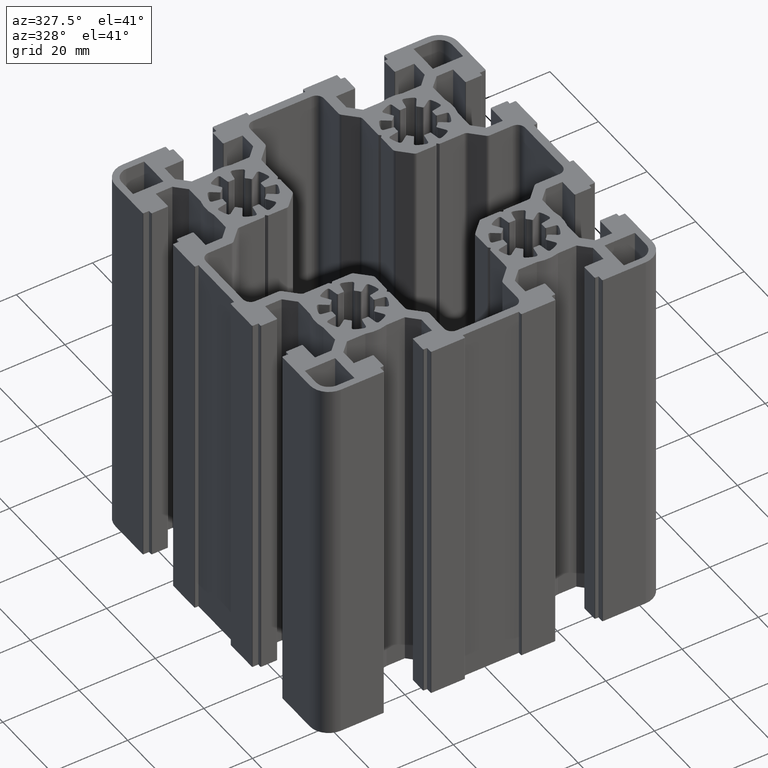
[diagram: clean part render]
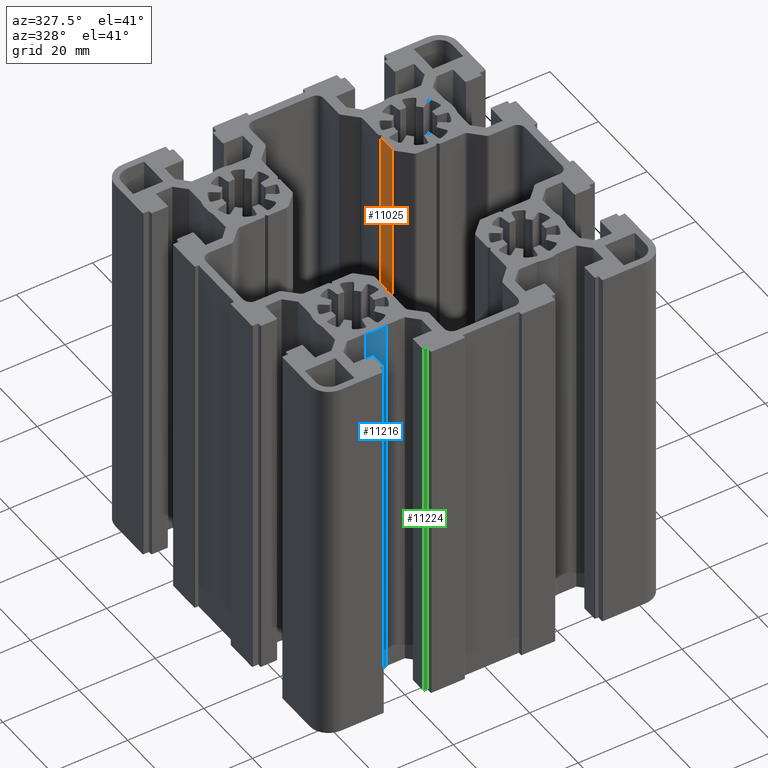
[diagram: same view with three faces highlighted in distinct colors, each labeled with its STEP entity id]
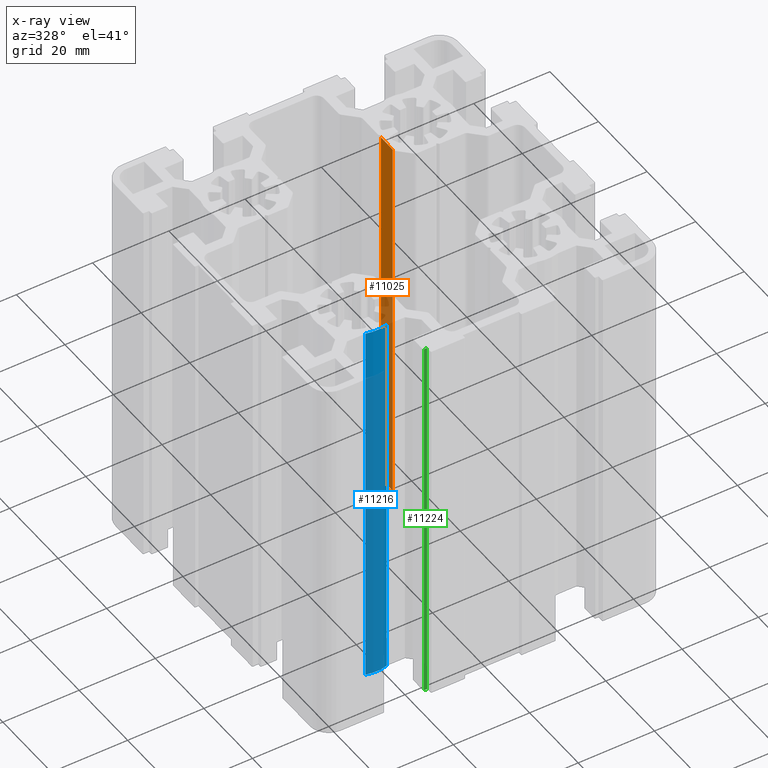
[diagram: x-ray of the same camera — body ghosted, the three highlighted faces saturated]
A machine part, auxiliary view with three faces highlighted in distinct colors.
The next image is the same camera in x-ray (body ghosted, the three faces saturated) — at least one of them is partly hidden behind the body in this view.
Their STEP definitions:

[orange] entity #11025 — the highlighted planar face has unit normal (1, 0, 0).
#84=PLANE('',#11739);
#431=FACE_OUTER_BOUND('',#1005,.T.);
#1005=EDGE_LOOP('',(#7657,#7658,#7659,#7660));
#1699=LINE('',#16828,#2823);
#1700=LINE('',#16831,#2824);
#1701=LINE('',#16833,#2825);
#1702=LINE('',#16834,#2826);
#2823=VECTOR('',#13387,100.);
#2824=VECTOR('',#13390,4.87517000000003);
#2825=VECTOR('',#13391,4.87517000000003);
#2826=VECTOR('',#13392,100.);
#4557=VERTEX_POINT('',#16824);
#4558=VERTEX_POINT('',#16826);
#4559=VERTEX_POINT('',#16830);
#4560=VERTEX_POINT('',#16832);
#5821=EDGE_CURVE('',#4558,#4557,#1699,.T.);
#5822=EDGE_CURVE('',#4557,#4559,#1700,.T.);
#5823=EDGE_CURVE('',#4560,#4558,#1701,.T.);
#5824=EDGE_CURVE('',#4560,#4559,#1702,.T.);
#7657=ORIENTED_EDGE('',*,*,#5822,.F.);
#7658=ORIENTED_EDGE('',*,*,#5821,.F.);
#7659=ORIENTED_EDGE('',*,*,#5823,.F.);
#7660=ORIENTED_EDGE('',*,*,#5824,.T.);
#11025=ADVANCED_FACE('',(#431),#84,.F.);
#11739=AXIS2_PLACEMENT_3D('',#16829,#13388,#13389);
#13387=DIRECTION('',(0.,0.,1.));
#13388=DIRECTION('center_axis',(1.,2.45838516864209E-8,0.));
#13389=DIRECTION('ref_axis',(-2.45838517543007E-8,1.,0.));
#13390=DIRECTION('',(2.45838516864209E-8,-1.,0.));
#13391=DIRECTION('',(-2.45838516864209E-8,1.,0.));
#13392=DIRECTION('',(0.,0.,1.));
#16824=CARTESIAN_POINT('',(13.199999607888,22.0000011701035,100.));
#16826=CARTESIAN_POINT('',(13.199999607888,22.0000011701035,0.));
#16828=CARTESIAN_POINT('',(13.199999607888,22.0000011701035,0.));
#16829=CARTESIAN_POINT('Origin',(13.1999997277384,17.1248311701034,0.));
#16830=CARTESIAN_POINT('',(13.1999997277384,17.1248311701034,100.));
#16831=CARTESIAN_POINT('',(13.1999999382356,8.56241574730514,100.));
#16832=CARTESIAN_POINT('',(13.1999997277384,17.1248311701034,0.));
#16833=CARTESIAN_POINT('',(13.1999999382356,8.56241574730514,0.));
#16834=CARTESIAN_POINT('',(13.1999997277384,17.1248311701034,0.));

[blue] entity #11216 — the highlighted cylindrical surface (partial cylindrical patch) has radius 9.9 mm, axis along (0, 0, 1).
#622=FACE_OUTER_BOUND('',#1196,.T.);
#1196=EDGE_LOOP('',(#8421,#8422,#8423,#8424));
#2041=LINE('',#17980,#3165);
#2042=LINE('',#17983,#3166);
#3165=VECTOR('',#14579,100.);
#3166=VECTOR('',#14582,100.);
#4095=CIRCLE('',#12163,9.9);
#4096=CIRCLE('',#12164,9.9);
#4941=VERTEX_POINT('',#17976);
#4942=VERTEX_POINT('',#17977);
#4943=VERTEX_POINT('',#17979);
#4944=VERTEX_POINT('',#17981);
#6395=EDGE_CURVE('',#4941,#4942,#4095,.T.);
#6396=EDGE_CURVE('',#4943,#4941,#2041,.T.);
#6397=EDGE_CURVE('',#4944,#4943,#4096,.T.);
#6398=EDGE_CURVE('',#4944,#4942,#2042,.T.);
#8421=ORIENTED_EDGE('',*,*,#6395,.F.);
#8422=ORIENTED_EDGE('',*,*,#6396,.F.);
#8423=ORIENTED_EDGE('',*,*,#6397,.F.);
#8424=ORIENTED_EDGE('',*,*,#6398,.T.);
#10794=CYLINDRICAL_SURFACE('',#12162,9.9);
#11216=ADVANCED_FACE('',(#622),#10794,.T.);
#12162=AXIS2_PLACEMENT_3D('',#17975,#14575,#14576);
#12163=AXIS2_PLACEMENT_3D('',#17978,#14577,#14578);
#12164=AXIS2_PLACEMENT_3D('',#17982,#14580,#14581);
#14575=DIRECTION('center_axis',(0.,0.,1.));
#14576=DIRECTION('ref_axis',(-0.281381579462027,-0.959595960151696,0.));
#14577=DIRECTION('center_axis',(0.,0.,1.));
#14578=DIRECTION('ref_axis',(-0.281381579462027,-0.959595960151696,0.));
#14579=DIRECTION('',(0.,0.,1.));
#14580=DIRECTION('center_axis',(0.,0.,-1.));
#14581=DIRECTION('ref_axis',(-0.281381579462027,-0.959595960151696,0.));
#14582=DIRECTION('',(0.,0.,1.));
#17975=CARTESIAN_POINT('Origin',(-22.5000001037966,-22.4999993420932,0.));
#17976=CARTESIAN_POINT('',(-25.2856777404707,-31.999999347595,100.));
#17977=CARTESIAN_POINT('',(-19.7143224671226,-31.999999347595,100.));
#17978=CARTESIAN_POINT('Origin',(-22.5000001037966,-22.4999993420932,100.));
#17979=CARTESIAN_POINT('',(-25.2856777404707,-31.999999347595,0.));
#17980=CARTESIAN_POINT('',(-25.2856777404707,-31.999999347595,0.));
#17981=CARTESIAN_POINT('',(-19.7143224671226,-31.999999347595,0.));
#17982=CARTESIAN_POINT('Origin',(-22.5000001037966,-22.4999993420932,0.));
#17983=CARTESIAN_POINT('',(-19.7143224671226,-31.999999347595,0.));

[green] entity #11224 — the highlighted planar face has unit normal (0, -1, 0).
#164=PLANE('',#12176);
#630=FACE_OUTER_BOUND('',#1204,.T.);
#1204=EDGE_LOOP('',(#8453,#8454,#8455,#8456));
#2059=LINE('',#18025,#3183);
#2060=LINE('',#18028,#3184);
#2061=LINE('',#18030,#3185);
#2062=LINE('',#18031,#3186);
#3183=VECTOR('',#14621,100.);
#3184=VECTOR('',#14624,0.799999999999947);
#3185=VECTOR('',#14625,0.799999999999947);
#3186=VECTOR('',#14626,100.);
#4957=VERTEX_POINT('',#18021);
#4958=VERTEX_POINT('',#18023);
#4959=VERTEX_POINT('',#18027);
#4960=VERTEX_POINT('',#18029);
#6419=EDGE_CURVE('',#4958,#4957,#2059,.T.);
#6420=EDGE_CURVE('',#4957,#4959,#2060,.T.);
#6421=EDGE_CURVE('',#4960,#4958,#2061,.T.);
#6422=EDGE_CURVE('',#4960,#4959,#2062,.T.);
#8453=ORIENTED_EDGE('',*,*,#6420,.F.);
#8454=ORIENTED_EDGE('',*,*,#6419,.F.);
#8455=ORIENTED_EDGE('',*,*,#6421,.F.);
#8456=ORIENTED_EDGE('',*,*,#6422,.T.);
#11224=ADVANCED_FACE('',(#630),#164,.T.);
#12176=AXIS2_PLACEMENT_3D('',#18026,#14622,#14623);
#14621=DIRECTION('',(0.,0.,1.));
#14622=DIRECTION('center_axis',(0.,-1.,0.));
#14623=DIRECTION('ref_axis',(1.,0.,0.));
#14624=DIRECTION('',(1.,0.,0.));
#14625=DIRECTION('',(-1.,0.,0.));
#14626=DIRECTION('',(0.,0.,1.));
#18021=CARTESIAN_POINT('',(-17.1500001037966,-43.3999993475951,100.));
#18023=CARTESIAN_POINT('',(-17.1500001037966,-43.3999993475951,0.));
#18025=CARTESIAN_POINT('',(-17.1500001037966,-43.3999993475951,0.));
#18026=CARTESIAN_POINT('Origin',(-17.1500001037966,-43.3999993475951,0.));
#18027=CARTESIAN_POINT('',(-16.3500001037967,-43.3999993475951,100.));
#18028=CARTESIAN_POINT('',(-8.5750000518983,-43.3999993475951,100.));
#18029=CARTESIAN_POINT('',(-16.3500001037967,-43.3999993475951,0.));
#18030=CARTESIAN_POINT('',(-8.5750000518983,-43.3999993475951,0.));
#18031=CARTESIAN_POINT('',(-16.3500001037967,-43.3999993475951,0.));